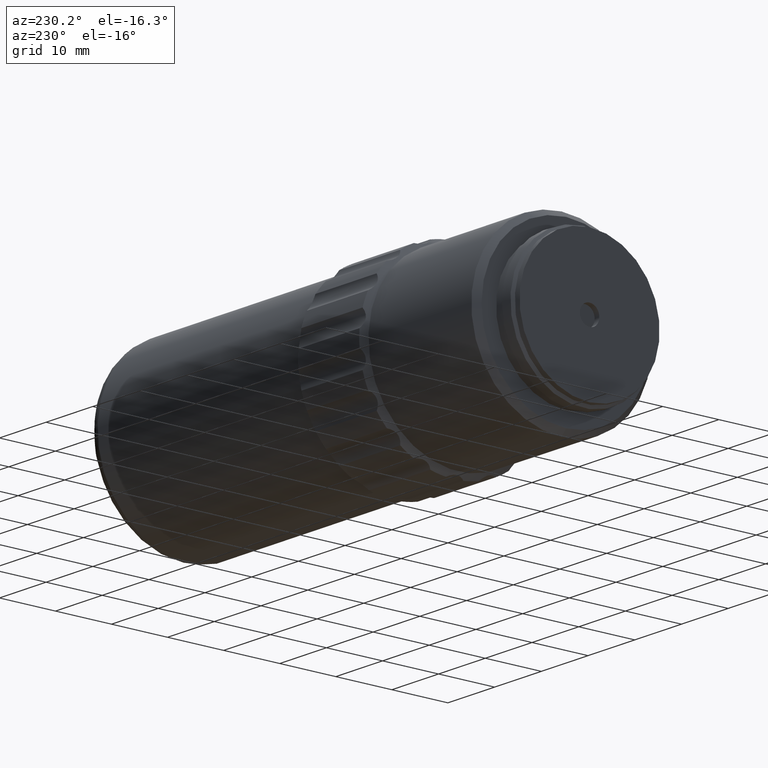
[diagram: clean part render]
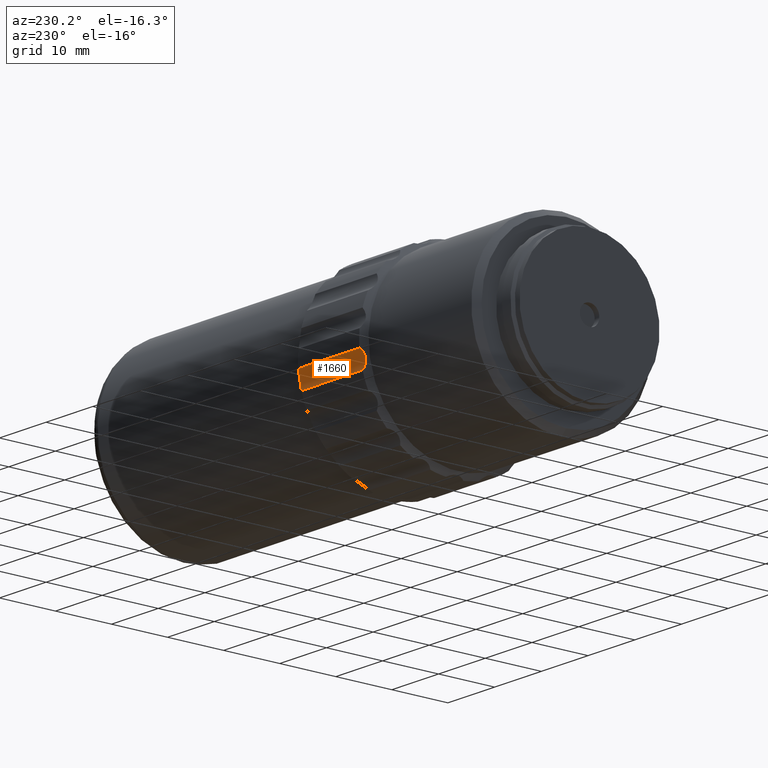
[diagram: same view with one face highlighted and labeled with its STEP entity id]
A machine part, auxiliary view. The second image highlights one B-rep face of the part: STEP entity #1660.
In plain terms, the highlighted cylindrical surface (edge-blend (fillet) strip) has radius 3 mm, axis along (-1, 0, 0).
Its self-contained STEP definition (entity closure, byte-faithful):
#28 = CARTESIAN_POINT ( 'NONE',  ( 35.73718579602898160, 62.29579183602519521, -2.721276841238320365 ) ) ;
#145 = CARTESIAN_POINT ( 'NONE',  ( 49.77824610092925894, 62.41703544440839835, -2.319880045867577234 ) ) ;
#168 = AXIS2_PLACEMENT_3D ( 'NONE', #1710, #835, #671 ) ;
#182 = CARTESIAN_POINT ( 'NONE',  ( 36.23704000000002168, 62.96184413496547450, -1.416514203673302941 ) ) ;
#202 = CARTESIAN_POINT ( 'NONE',  ( 35.83116349261862155, 62.22720588179112866, -3.569201001427937392 ) ) ;
#372 = CARTESIAN_POINT ( 'NONE',  ( 35.79717978247138888, 62.41914792436490700, -2.314480119284883397 ) ) ;
#373 = CARTESIAN_POINT ( 'NONE',  ( 49.33703999999998757, 62.42466032279407528, -4.463034991433911358 ) ) ;
#384 = LINE ( 'NONE', #416, #1578 ) ;
#416 = CARTESIAN_POINT ( 'NONE',  ( 70.47704240000000198, 62.96184413496550292, -1.416514203673273853 ) ) ;
#480 = CARTESIAN_POINT ( 'NONE',  ( 49.33703999999998757, 62.42466032279407528, -4.463034991433911358 ) ) ;
#554 = CARTESIAN_POINT ( 'NONE',  ( 35.74888686446903563, 62.23105311343569923, -3.145384777660003461 ) ) ;
#575 = CARTESIAN_POINT ( 'NONE',  ( 36.23704000000000747, 62.42466032279407528, -4.463034991433911358 ) ) ;
#596 = EDGE_CURVE ( 'NONE', #867, #1388, #1163, .T. ) ;
#612 = CARTESIAN_POINT ( 'NONE',  ( 49.83718322546592816, 62.29466383950087760, -2.726265681694565846 ) ) ;
#661 = EDGE_CURVE ( 'NONE', #1388, #1706, #1389, .T. ) ;
#671 = DIRECTION ( 'NONE',  ( 0.000000000000000000, 0.000000000000000000, 1.000000000000000000 ) ) ;
#731 = CARTESIAN_POINT ( 'NONE',  ( 36.23704000000002168, 62.96184413496547450, -1.416514203673302941 ) ) ;
#742 = CARTESIAN_POINT ( 'NONE',  ( 35.96396204701625265, 62.27060295615643071, -3.975612932441880520 ) ) ;
#751 = ORIENTED_EDGE ( 'NONE', *, *, #1145, .F. ) ;
#794 = ORIENTED_EDGE ( 'NONE', *, *, #596, .F. ) ;
#813 = CARTESIAN_POINT ( 'NONE',  ( 49.60850845692043976, 62.27129880966106157, -3.979600334337187739 ) ) ;
#835 = DIRECTION ( 'NONE',  ( -1.000000000000000000, 0.000000000000000000, 0.000000000000000000 ) ) ;
#867 = VERTEX_POINT ( 'NONE', #182 ) ;
#902 = CARTESIAN_POINT ( 'NONE',  ( 35.73689677453407398, 62.24567731064610143, -3.004082092195023534 ) ) ;
#1000 = CARTESIAN_POINT ( 'NONE',  ( 49.83689420397102054, 62.24503099672836015, -3.009155866290945003 ) ) ;
#1026 = CARTESIAN_POINT ( 'NONE',  ( 49.33703999999998047, 62.96184413496547450, -1.416514203673302941 ) ) ;
#1076 = CARTESIAN_POINT ( 'NONE',  ( 35.83178862640946249, 62.47151406203237656, -2.186719745017576599 ) ) ;
#1097 = CARTESIAN_POINT ( 'NONE',  ( 36.23704000000000747, 62.42466032279407528, -4.463034991433911358 ) ) ;
#1145 = EDGE_CURVE ( 'NONE', #1706, #1984, #1495, .T. ) ;
#1156 = CARTESIAN_POINT ( 'NONE',  ( 49.48389740914200274, 62.33552269872132712, -4.231266864385903936 ) ) ;
#1163 = B_SPLINE_CURVE_WITH_KNOTS ( 'NONE', 3,
 ( #731, #1222, #1776, #1076, #372, #1758, #28, #902, #554, #1296, #202, #742, #1235, #575 ),
 .UNSPECIFIED., .F., .F.,
 ( 4, 2, 2, 2, 2, 2, 4 ),
 ( 2.170571666196656259E-17, 0.0008570537395405614751, 0.001285580609310831316, 0.001714107479081101266, 0.002142634348851370999, 0.002571161218621640949, 0.003428214958162183017 ),
 .UNSPECIFIED. ) ;
#1166 = CARTESIAN_POINT ( 'NONE',  ( 49.74229137359049702, 62.22732658115022275, -3.571575765922810231 ) ) ;
#1176 = FACE_OUTER_BOUND ( 'NONE', #1394, .T. ) ;
#1216 = VECTOR ( 'NONE', #1600, 1000.000000000000000 ) ;
#1222 = CARTESIAN_POINT ( 'NONE',  ( 36.09018259085800651, 62.79881279935867155, -1.603818139432592549 ) ) ;
#1235 = CARTESIAN_POINT ( 'NONE',  ( 36.08992233123991866, 62.33536472968093278, -4.230856126619384483 ) ) ;
#1253 = ORIENTED_EDGE ( 'NONE', *, *, #1825, .F. ) ;
#1296 = CARTESIAN_POINT ( 'NONE',  ( 35.79583389907074320, 62.22167693136037769, -3.427813229224495384 ) ) ;
#1303 = CARTESIAN_POINT ( 'NONE',  ( 49.74291650738140191, 62.47058842444242543, -2.188910012077419420 ) ) ;
#1388 = VERTEX_POINT ( 'NONE', #1097 ) ;
#1389 = LINE ( 'NONE', #1747, #1216 ) ;
#1394 = EDGE_LOOP ( 'NONE', ( #794, #1253, #751, #1864 ) ) ;
#1421 = DIRECTION ( 'NONE',  ( -1.000000000000000000, 0.000000000000000000, 0.000000000000000000 ) ) ;
#1475 = CARTESIAN_POINT ( 'NONE',  ( 49.33703999999998047, 62.96184413496547450, -1.416514203673302941 ) ) ;
#1484 = CARTESIAN_POINT ( 'NONE',  ( 49.48415766876006927, 62.79852387642730349, -1.604150078087053233 ) ) ;
#1495 = B_SPLINE_CURVE_WITH_KNOTS ( 'NONE', 3,
 ( #480, #1156, #813, #1166, #1656, #1667, #1000, #612, #1810, #145, #1303, #1994, #1484, #1475 ),
 .UNSPECIFIED., .F., .F.,
 ( 4, 2, 2, 2, 2, 2, 4 ),
 ( 6.071532165918824830E-18, 0.0008570537395405441279, 0.001285580609310812668, 0.001714107479081081534, 0.002142634348851350182, 0.002571161218621618831, 0.003428214958162156129 ),
 .UNSPECIFIED. ) ;
#1566 = CYLINDRICAL_SURFACE ( 'NONE', #168, 3.000000000000000000 ) ;
#1578 = VECTOR ( 'NONE', #1421, 1000.000000000000000 ) ;
#1600 = DIRECTION ( 'NONE',  ( 1.000000000000000000, -0.000000000000000000, -0.000000000000000000 ) ) ;
#1656 = CARTESIAN_POINT ( 'NONE',  ( 49.77690021752859195, 62.22181512952325022, -3.433610011084526459 ) ) ;
#1660 = ADVANCED_FACE ( 'NONE', ( #1176 ), #1566, .F. ) ;
#1667 = CARTESIAN_POINT ( 'NONE',  ( 49.82422713112008950, 62.23047274774312143, -3.153385542406664577 ) ) ;
#1706 = VERTEX_POINT ( 'NONE', #373 ) ;
#1710 = CARTESIAN_POINT ( 'NONE',  ( 70.47704240000000198, 65.22471318373810334, -3.386139464505140140 ) ) ;
#1747 = CARTESIAN_POINT ( 'NONE',  ( 70.47704240000000198, 62.42466032279407528, -4.463034991433911358 ) ) ;
#1758 = CARTESIAN_POINT ( 'NONE',  ( 35.74985286887991975, 62.33144101137909843, -2.580766064489528500 ) ) ;
#1776 = CARTESIAN_POINT ( 'NONE',  ( 35.96557154307956239, 62.65238706205301611, -1.818341456876854112 ) ) ;
#1810 = CARTESIAN_POINT ( 'NONE',  ( 49.82519313553096652, 62.32924995403242008, -2.588482820839978160 ) ) ;
#1825 = EDGE_CURVE ( 'NONE', #1984, #867, #384, .T. ) ;
#1864 = ORIENTED_EDGE ( 'NONE', *, *, #661, .F. ) ;
#1984 = VERTEX_POINT ( 'NONE', #1026 ) ;
#1994 = CARTESIAN_POINT ( 'NONE',  ( 49.61011795298374949, 62.65036940188181802, -1.821850393098604748 ) ) ;